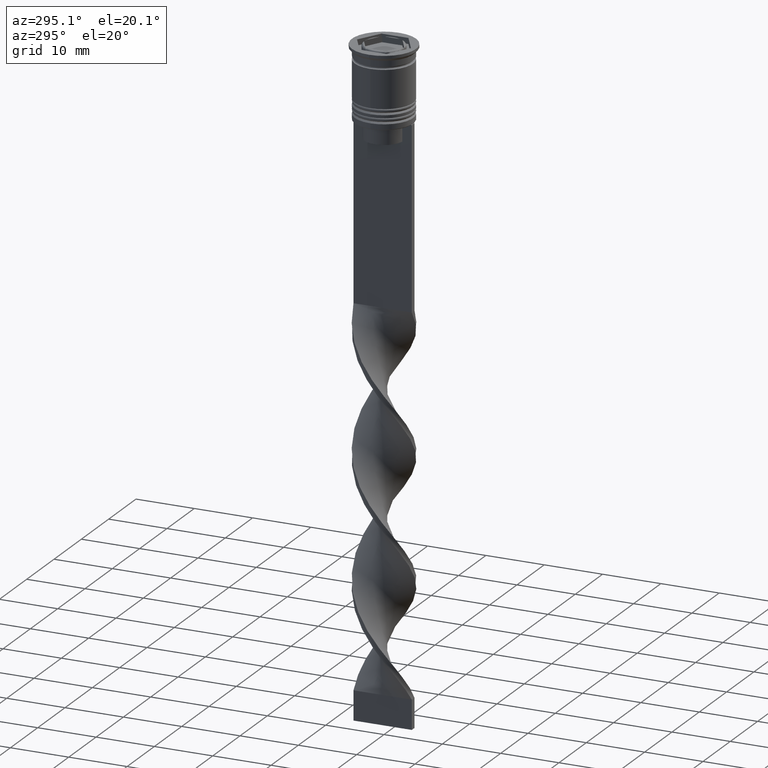
[diagram: clean part render]
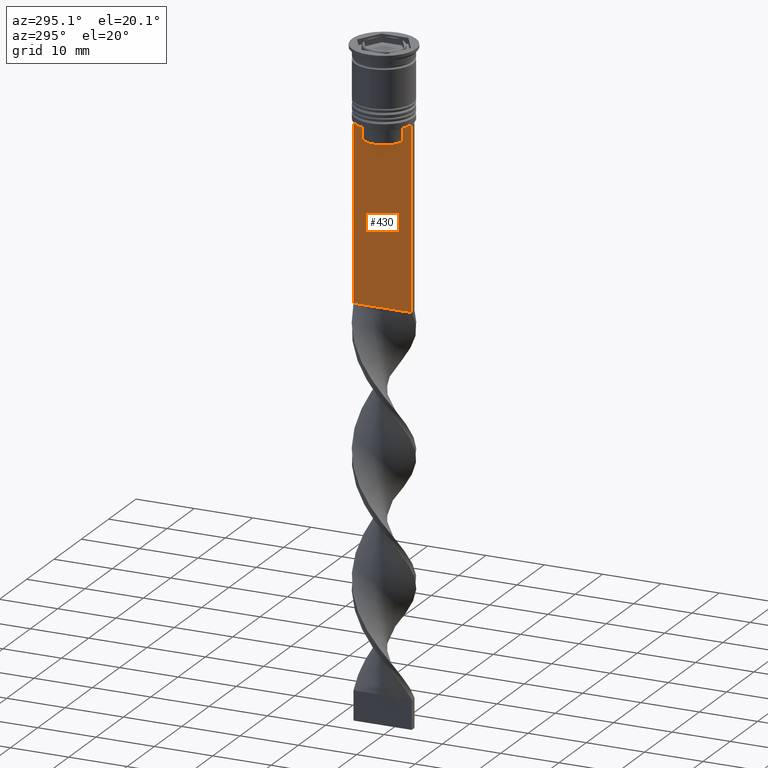
[diagram: same view with one face highlighted and labeled with its STEP entity id]
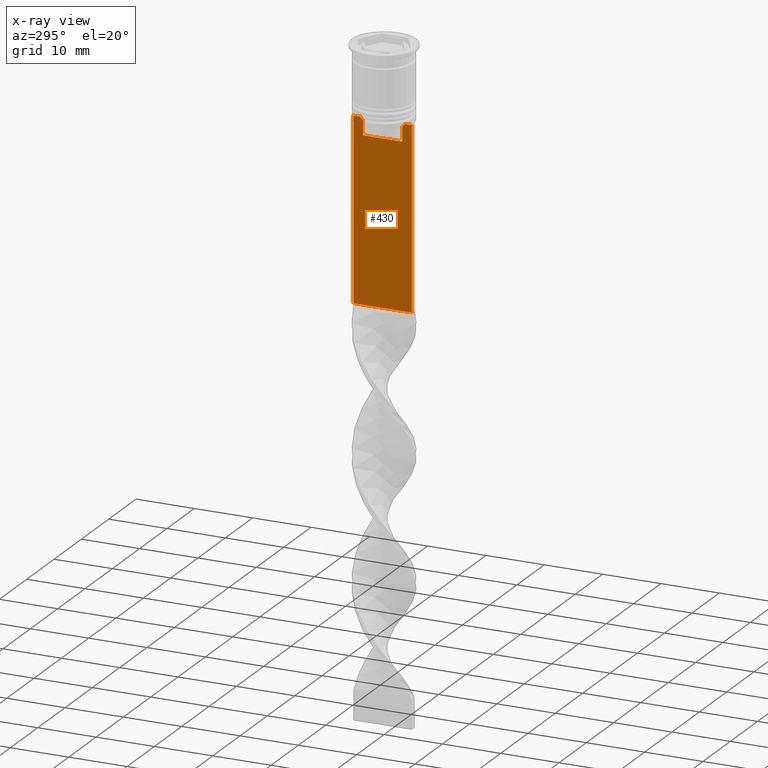
[diagram: x-ray of the same camera — body ghosted, the highlighted face saturated]
A machine part, auxiliary view. The second image highlights one B-rep face of the part: STEP entity #430.
The next image is the same camera in x-ray: the body ghosted, the highlighted face saturated — about 0% of this face is hidden behind the body in this view.
In plain terms, the highlighted planar face has unit normal (-1, 0, 0).
Its self-contained STEP definition (entity closure, byte-faithful):
#13 = EDGE_CURVE ( 'NONE', #613, #1246, #231, .T. ) ;
#113 = CARTESIAN_POINT ( 'NONE',  ( -0.5000000000000000000, -3.363034344160045652, -15.50000000000000000 ) ) ;
#145 = CARTESIAN_POINT ( 'NONE',  ( -0.5000000000000000000, -4.999999999999999112, -43.50000000000000000 ) ) ;
#185 = CARTESIAN_POINT ( 'NONE',  ( -0.5000000000000000000, -4.999999999999999112, -12.50000000000000000 ) ) ;
#197 = CARTESIAN_POINT ( 'NONE',  ( -0.5000000000000000000, 3.867815921162742754, -12.50000000000000000 ) ) ;
#231 = LINE ( 'NONE', #3155, #1965 ) ;
#241 = LINE ( 'NONE', #3101, #2716 ) ;
#308 = ORIENTED_EDGE ( 'NONE', *, *, #415, .F. ) ;
#363 = DIRECTION ( 'NONE',  ( 0.000000000000000000, -1.000000000000000000, 0.000000000000000000 ) ) ;
#415 = EDGE_CURVE ( 'NONE', #1246, #2653, #2838, .T. ) ;
#421 = CARTESIAN_POINT ( 'NONE',  ( -0.5000000000000000000, 3.363034344160045652, -15.50000000000000000 ) ) ;
#430 = ADVANCED_FACE ( 'NONE', ( #721 ), #1310, .T. ) ;
#443 = CARTESIAN_POINT ( 'NONE',  ( -0.5000000000000000000, -4.999999999999999112, -2.450124378879110054 ) ) ;
#446 = EDGE_CURVE ( 'NONE', #2863, #2335, #1765, .T. ) ;
#460 = CARTESIAN_POINT ( 'NONE',  ( -0.5000000000000000000, 5.000000000000000888, -43.50000000000000000 ) ) ;
#467 = CARTESIAN_POINT ( 'NONE',  ( -0.5000000000000000000, -3.363034344160045208, -13.00000000000000178 ) ) ;
#486 = CARTESIAN_POINT ( 'NONE',  ( -0.5000000000000000000, -3.531412985305424801, -12.83345201382502765 ) ) ;
#503 = VERTEX_POINT ( 'NONE', #2978 ) ;
#526 = ORIENTED_EDGE ( 'NONE', *, *, #446, .F. ) ;
#535 = DIRECTION ( 'NONE',  ( 0.000000000000000000, -1.000000000000000000, 0.000000000000000000 ) ) ;
#613 = VERTEX_POINT ( 'NONE', #113 ) ;
#614 = EDGE_CURVE ( 'NONE', #3088, #613, #656, .T. ) ;
#623 = DIRECTION ( 'NONE',  ( 0.000000000000000000, -1.000000000000000000, 0.000000000000000000 ) ) ;
#650 = ORIENTED_EDGE ( 'NONE', *, *, #916, .F. ) ;
#656 = LINE ( 'NONE', #1239, #3480 ) ;
#684 = CARTESIAN_POINT ( 'NONE',  ( -0.5000000000000000000, 5.000000000000000888, -12.50000000000000000 ) ) ;
#721 = FACE_OUTER_BOUND ( 'NONE', #1879, .T. ) ;
#737 = VECTOR ( 'NONE', #1306, 1000.000000000000000 ) ;
#745 = VECTOR ( 'NONE', #1268, 1000.000000000000000 ) ;
#798 = CARTESIAN_POINT ( 'NONE',  ( -0.5000000000000000000, 3.363034344160045208, -13.00000000000000178 ) ) ;
#898 = VERTEX_POINT ( 'NONE', #2341 ) ;
#916 = EDGE_CURVE ( 'NONE', #2560, #3088, #2282, .T. ) ;
#920 = CARTESIAN_POINT ( 'NONE',  ( -0.5000000000000000000, -4.999999999999999112, -12.50000000000000000 ) ) ;
#965 = CARTESIAN_POINT ( 'NONE',  ( -0.5000000000000000000, -4.874423042781575788, -12.50000000000000000 ) ) ;
#997 = ORIENTED_EDGE ( 'NONE', *, *, #2945, .F. ) ;
#1026 = DIRECTION ( 'NONE',  ( 0.000000000000000000, -1.000000000000000000, 0.000000000000000000 ) ) ;
#1034 = VECTOR ( 'NONE', #1026, 1000.000000000000000 ) ;
#1043 = CARTESIAN_POINT ( 'NONE',  ( -0.5000000000000000000, -3.699658232838647365, -12.66676999593996555 ) ) ;
#1065 = CARTESIAN_POINT ( 'NONE',  ( -0.5000000000000000000, 3.363034344160045208, -13.00000000000000178 ) ) ;
#1098 = ORIENTED_EDGE ( 'NONE', *, *, #3293, .F. ) ;
#1236 = EDGE_CURVE ( 'NONE', #503, #2051, #2117, .T. ) ;
#1239 = CARTESIAN_POINT ( 'NONE',  ( -0.5000000000000000000, 3.399999999999998135, -15.50000000000000000 ) ) ;
#1246 = VERTEX_POINT ( 'NONE', #1764 ) ;
#1258 = VECTOR ( 'NONE', #363, 1000.000000000000000 ) ;
#1268 = DIRECTION ( 'NONE',  ( 0.000000000000000000, 1.000000000000000000, 0.000000000000000000 ) ) ;
#1306 = DIRECTION ( 'NONE',  ( 0.000000000000000000, 0.000000000000000000, -1.000000000000000000 ) ) ;
#1309 = AXIS2_PLACEMENT_3D ( 'NONE', #1608, #2751, #3014 ) ;
#1310 = PLANE ( 'NONE',  #1309 ) ;
#1322 = EDGE_CURVE ( 'NONE', #898, #2560, #1494, .T. ) ;
#1346 = VECTOR ( 'NONE', #2029, 1000.000000000000000 ) ;
#1361 = CARTESIAN_POINT ( 'NONE',  ( -0.5000000000000000000, 5.000000000000000888, -2.450124378879110054 ) ) ;
#1381 = LINE ( 'NONE', #1361, #737 ) ;
#1494 = B_SPLINE_CURVE_WITH_KNOTS ( 'NONE', 3,
 ( #197, #2173, #3096, #1065 ),
 .UNSPECIFIED., .F., .F.,
 ( 4, 4 ),
 ( 0.006644825462451552783, 0.007355321358912435097 ),
 .UNSPECIFIED. ) ;
#1550 = EDGE_CURVE ( 'NONE', #2653, #1874, #2067, .T. ) ;
#1576 = ORIENTED_EDGE ( 'NONE', *, *, #13, .F. ) ;
#1608 = CARTESIAN_POINT ( 'NONE',  ( -0.5000000000000000000, -4.999999999999999112, -2.450124378879110054 ) ) ;
#1625 = DIRECTION ( 'NONE',  ( -0.000000000000000000, -0.000000000000000000, 1.000000000000000000 ) ) ;
#1639 = ORIENTED_EDGE ( 'NONE', *, *, #614, .F. ) ;
#1754 = CARTESIAN_POINT ( 'NONE',  ( -0.5000000000000000000, 4.874423042781575788, -12.50000000000000000 ) ) ;
#1764 = CARTESIAN_POINT ( 'NONE',  ( -0.5000000000000000000, -3.363034344160045208, -13.00000000000000178 ) ) ;
#1765 = LINE ( 'NONE', #2087, #1258 ) ;
#1868 = CARTESIAN_POINT ( 'NONE',  ( -0.5000000000000000000, -3.867815921162742754, -12.50000000000000000 ) ) ;
#1874 = VERTEX_POINT ( 'NONE', #965 ) ;
#1879 = EDGE_LOOP ( 'NONE', ( #2226, #3535, #526, #2015, #3657, #1098, #997, #3581, #308, #1576, #1639, #650 ) ) ;
#1965 = VECTOR ( 'NONE', #1625, 1000.000000000000000 ) ;
#2015 = ORIENTED_EDGE ( 'NONE', *, *, #3433, .T. ) ;
#2029 = DIRECTION ( 'NONE',  ( 0.000000000000000000, 0.000000000000000000, -1.000000000000000000 ) ) ;
#2051 = VERTEX_POINT ( 'NONE', #460 ) ;
#2067 = LINE ( 'NONE', #920, #2849 ) ;
#2087 = CARTESIAN_POINT ( 'NONE',  ( -0.5000000000000000000, -4.999999999999999112, -12.50000000000000000 ) ) ;
#2117 = LINE ( 'NONE', #145, #745 ) ;
#2173 = CARTESIAN_POINT ( 'NONE',  ( -0.5000000000000000000, 3.699657965831574913, -12.66677026074361301 ) ) ;
#2226 = ORIENTED_EDGE ( 'NONE', *, *, #1322, .F. ) ;
#2282 = LINE ( 'NONE', #3489, #3289 ) ;
#2288 = EDGE_CURVE ( 'NONE', #2335, #898, #241, .T. ) ;
#2335 = VERTEX_POINT ( 'NONE', #1754 ) ;
#2341 = CARTESIAN_POINT ( 'NONE',  ( -0.5000000000000000000, 3.867815921162742754, -12.50000000000000000 ) ) ;
#2555 = CARTESIAN_POINT ( 'NONE',  ( -0.5000000000000000000, -3.867815921162742754, -12.50000000000000000 ) ) ;
#2560 = VERTEX_POINT ( 'NONE', #798 ) ;
#2598 = DIRECTION ( 'NONE',  ( 0.000000000000000000, 0.000000000000000000, -1.000000000000000000 ) ) ;
#2653 = VERTEX_POINT ( 'NONE', #2555 ) ;
#2716 = VECTOR ( 'NONE', #535, 1000.000000000000000 ) ;
#2744 = VERTEX_POINT ( 'NONE', #2802 ) ;
#2751 = DIRECTION ( 'NONE',  ( -1.000000000000000000, 0.000000000000000000, 0.000000000000000000 ) ) ;
#2802 = CARTESIAN_POINT ( 'NONE',  ( -0.5000000000000000000, -4.999999999999999112, -12.50000000000000000 ) ) ;
#2838 = B_SPLINE_CURVE_WITH_KNOTS ( 'NONE', 3,
 ( #467, #486, #1043, #1868 ),
 .UNSPECIFIED., .F., .F.,
 ( 4, 4 ),
 ( 0.01632394437298965648, 0.01703543518243618576 ),
 .UNSPECIFIED. ) ;
#2849 = VECTOR ( 'NONE', #623, 1000.000000000000000 ) ;
#2863 = VERTEX_POINT ( 'NONE', #684 ) ;
#2945 = EDGE_CURVE ( 'NONE', #1874, #2744, #3042, .T. ) ;
#2978 = CARTESIAN_POINT ( 'NONE',  ( -0.5000000000000000000, -4.999999999999999112, -43.50000000000000000 ) ) ;
#3014 = DIRECTION ( 'NONE',  ( 0.000000000000000000, 0.000000000000000000, 1.000000000000000000 ) ) ;
#3042 = LINE ( 'NONE', #185, #1034 ) ;
#3088 = VERTEX_POINT ( 'NONE', #421 ) ;
#3096 = CARTESIAN_POINT ( 'NONE',  ( -0.5000000000000000000, 3.531412678228260216, -12.83345231756357840 ) ) ;
#3101 = CARTESIAN_POINT ( 'NONE',  ( -0.5000000000000000000, -4.999999999999999112, -12.50000000000000000 ) ) ;
#3155 = CARTESIAN_POINT ( 'NONE',  ( -0.5000000000000000000, -3.363034344160045208, 0.000000000000000000 ) ) ;
#3214 = DIRECTION ( 'NONE',  ( 0.000000000000000000, -1.000000000000000000, 0.000000000000000000 ) ) ;
#3276 = LINE ( 'NONE', #443, #1346 ) ;
#3289 = VECTOR ( 'NONE', #2598, 1000.000000000000000 ) ;
#3293 = EDGE_CURVE ( 'NONE', #2744, #503, #3276, .T. ) ;
#3433 = EDGE_CURVE ( 'NONE', #2863, #2051, #1381, .T. ) ;
#3480 = VECTOR ( 'NONE', #3214, 1000.000000000000000 ) ;
#3489 = CARTESIAN_POINT ( 'NONE',  ( -0.5000000000000000000, 3.363034344160045208, 0.000000000000000000 ) ) ;
#3535 = ORIENTED_EDGE ( 'NONE', *, *, #2288, .F. ) ;
#3581 = ORIENTED_EDGE ( 'NONE', *, *, #1550, .F. ) ;
#3657 = ORIENTED_EDGE ( 'NONE', *, *, #1236, .F. ) ;